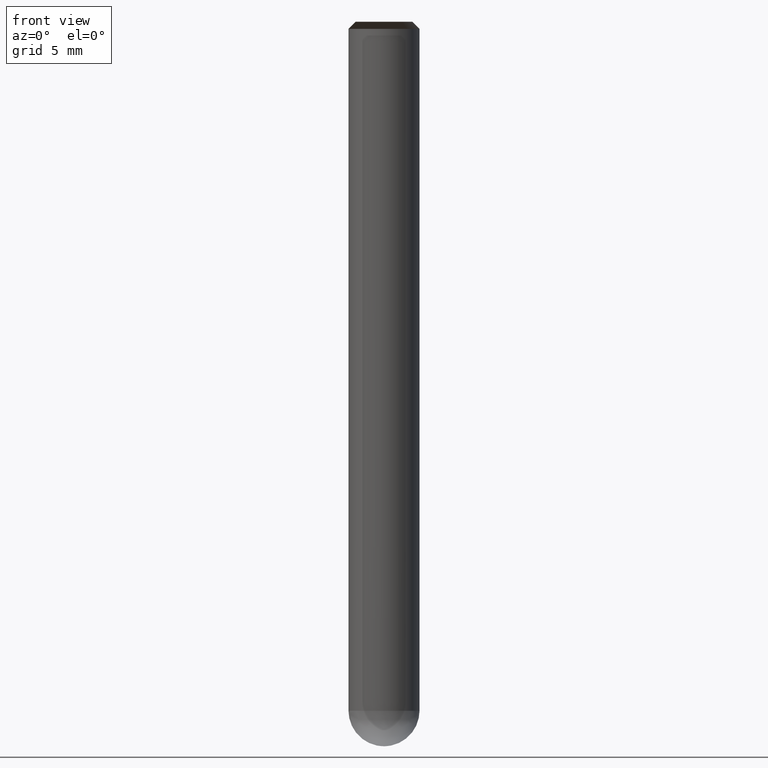
[diagram: clean part render]
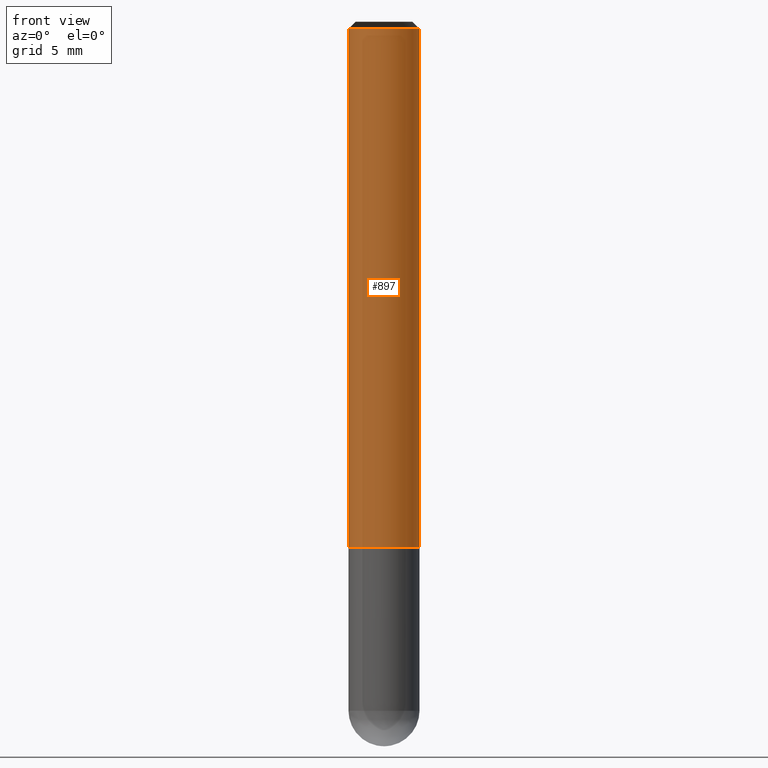
[diagram: same view with one face highlighted and labeled with its STEP entity id]
A machine part, front view. The second image highlights one B-rep face of the part: STEP entity #897.
In plain terms, the highlighted face is a freeform B-spline surface patch.
Its self-contained STEP definition (entity closure, byte-faithful):
#610=CARTESIAN_POINT('',(2.5,0.0,0.0));
#614=CARTESIAN_POINT('',(-2.5,0.0,0.0));
#615=CARTESIAN_POINT('',(2.5,0.0,36.5));
#619=CARTESIAN_POINT('',(-2.5,0.0,36.5));
#626=CARTESIAN_POINT('',(-2.5,-2.5,0.0));
#627=CARTESIAN_POINT('',(0.0,-2.5,0.0));
#628=CARTESIAN_POINT('',(2.5,-2.5,0.0));
#629=CARTESIAN_POINT('',(-2.5,-2.5,36.5));
#630=CARTESIAN_POINT('',(0.0,-2.5,36.5));
#631=CARTESIAN_POINT('',(2.5,-2.5,36.5));
#878=(
BOUNDED_SURFACE()
B_SPLINE_SURFACE(1,2,(
(#614,#626,#627,#628,#610),
(#619,#629,#630,#631,#615)
), .UNSPECIFIED.,.F.,.F.,.F.)
B_SPLINE_SURFACE_WITH_KNOTS((2,2),(3,2,3),(
0.0,1.0),(
0.0,0.5,1.0), .UNSPECIFIED.)
GEOMETRIC_REPRESENTATION_ITEM()
RATIONAL_B_SPLINE_SURFACE(((1.0,0.707106781187,1.0,0.707106781187,1.0),
(1.0,0.707106781187,1.0,0.707106781187,1.0)
))
REPRESENTATION_ITEM('')
SURFACE()
);
#879=(
BOUNDED_CURVE()
B_SPLINE_CURVE(2,(#610,#628,#627,#626,#614),.UNSPECIFIED.,.F.,.F.)
B_SPLINE_CURVE_WITH_KNOTS((3,2,3),
(0.0,0.5,1.0),.UNSPECIFIED.)
CURVE()
GEOMETRIC_REPRESENTATION_ITEM()
RATIONAL_B_SPLINE_CURVE((1.0,0.707106781187,1.0,0.707106781187,1.0))
REPRESENTATION_ITEM('')
);
#880=(
BOUNDED_CURVE()
B_SPLINE_CURVE(1,(#614,#619),.UNSPECIFIED.,.F.,.F.)
B_SPLINE_CURVE_WITH_KNOTS((2,2),
(0.0,1.0),.UNSPECIFIED.)
CURVE()
GEOMETRIC_REPRESENTATION_ITEM()
RATIONAL_B_SPLINE_CURVE((1.0,1.0))
REPRESENTATION_ITEM('')
);
#881=(
BOUNDED_CURVE()
B_SPLINE_CURVE(2,(#619,#629,#630,#631,#615),.UNSPECIFIED.,.F.,.F.)
B_SPLINE_CURVE_WITH_KNOTS((3,2,3),
(0.0,0.5,1.0),.UNSPECIFIED.)
CURVE()
GEOMETRIC_REPRESENTATION_ITEM()
RATIONAL_B_SPLINE_CURVE((1.0,0.707106781187,1.0,0.707106781187,1.0))
REPRESENTATION_ITEM('')
);
#882=(
BOUNDED_CURVE()
B_SPLINE_CURVE(1,(#615,#610),.UNSPECIFIED.,.F.,.F.)
B_SPLINE_CURVE_WITH_KNOTS((2,2),
(0.0,1.0),.UNSPECIFIED.)
CURVE()
GEOMETRIC_REPRESENTATION_ITEM()
RATIONAL_B_SPLINE_CURVE((1.0,1.0))
REPRESENTATION_ITEM('')
);
#883=VERTEX_POINT('',#610);
#884=VERTEX_POINT('',#614);
#885=VERTEX_POINT('',#615);
#886=VERTEX_POINT('',#619);
#887=EDGE_CURVE('',#883,#884,#879,.T.);
#888=EDGE_CURVE('',#884,#886,#880,.T.);
#889=EDGE_CURVE('',#886,#885,#881,.T.);
#890=EDGE_CURVE('',#885,#883,#882,.T.);
#891=ORIENTED_EDGE('',*,*,#887,.T.);
#892=ORIENTED_EDGE('',*,*,#888,.T.);
#893=ORIENTED_EDGE('',*,*,#889,.T.);
#894=ORIENTED_EDGE('',*,*,#890,.T.);
#895=EDGE_LOOP('',(#891,#892,#893,#894));
#896=FACE_OUTER_BOUND('',#895,.T.);
#897=ADVANCED_FACE('',(#896),#878,.T.);